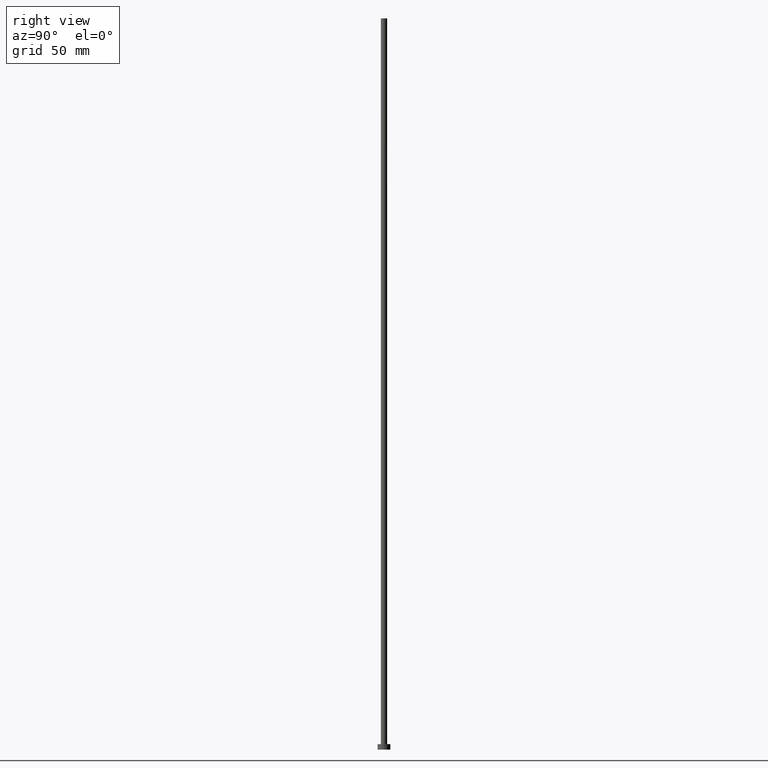
[diagram: clean part render]
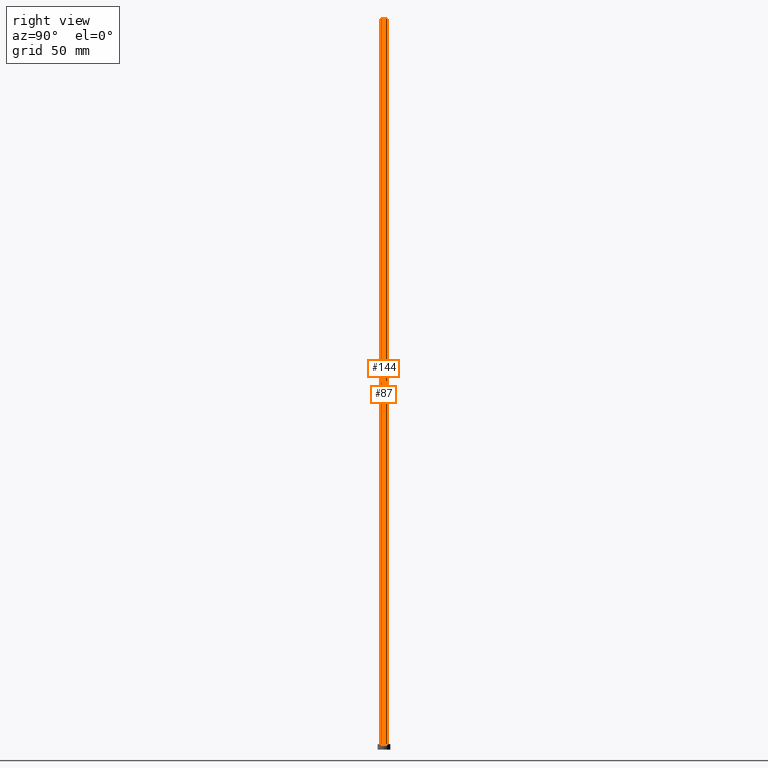
[diagram: same view with one multi-face feature highlighted, each face labeled with its STEP entity id]
A machine part, right view. The highlighted faces form ONE feature: a constant-radius fillet chain: 2 tangent blend faces with common blend radius 1.75 mm. The faces share edges in the B-rep.
Their STEP definitions:
[1] entity #144 (Cylinder):
#12 = CARTESIAN_POINT ( 'NONE',  ( 0.000000000000000000, 0.000000000000000000, 400.0000000000000000 ) ) ;
#14 = EDGE_CURVE ( 'NONE', #236, #185, #135, .T. ) ;
#16 = ORIENTED_EDGE ( 'NONE', *, *, #247, .T. ) ;
#30 = LINE ( 'NONE', #104, #254 ) ;
#32 = CYLINDRICAL_SURFACE ( 'NONE', #146, 1.750000000000000000 ) ;
#46 = CIRCLE ( 'NONE', #248, 1.750000000000000000 ) ;
#52 = ORIENTED_EDGE ( 'NONE', *, *, #180, .F. ) ;
#64 = EDGE_CURVE ( 'NONE', #226, #185, #30, .T. ) ;
#83 = DIRECTION ( 'NONE',  ( 0.000000000000000000, 0.000000000000000000, 1.000000000000000000 ) ) ;
#85 = VECTOR ( 'NONE', #228, 1000.000000000000000 ) ;
#93 = CARTESIAN_POINT ( 'NONE',  ( 1.750000000000000000, 2.143131898507868297E-16, 400.0000000000000000 ) ) ;
#95 = CARTESIAN_POINT ( 'NONE',  ( -1.750000000000000000, 0.000000000000000000, 400.0000000000000000 ) ) ;
#104 = CARTESIAN_POINT ( 'NONE',  ( 1.750000000000000000, 2.143131898507868297E-16, 400.0000000000000000 ) ) ;
#112 = VERTEX_POINT ( 'NONE', #244 ) ;
#125 = EDGE_LOOP ( 'NONE', ( #229, #52, #16, #205 ) ) ;
#126 = FACE_OUTER_BOUND ( 'NONE', #125, .T. ) ;
#135 = CIRCLE ( 'NONE', #249, 1.750000000000000000 ) ;
#137 = DIRECTION ( 'NONE',  ( -0.000000000000000000, -0.000000000000000000, -1.000000000000000000 ) ) ;
#144 = ADVANCED_FACE ( 'NONE', ( #126 ), #32, .T. ) ;
#146 = AXIS2_PLACEMENT_3D ( 'NONE', #12, #137, #217 ) ;
#149 = LINE ( 'NONE', #95, #85 ) ;
#168 = CARTESIAN_POINT ( 'NONE',  ( -1.750000000000000000, 0.000000000000000000, 3.000000000000000000 ) ) ;
#180 = EDGE_CURVE ( 'NONE', #112, #226, #46, .T. ) ;
#183 = DIRECTION ( 'NONE',  ( -0.000000000000000000, -0.000000000000000000, -1.000000000000000000 ) ) ;
#184 = CARTESIAN_POINT ( 'NONE',  ( 0.000000000000000000, 0.000000000000000000, 3.000000000000000000 ) ) ;
#185 = VERTEX_POINT ( 'NONE', #231 ) ;
#191 = CARTESIAN_POINT ( 'NONE',  ( 0.000000000000000000, 0.000000000000000000, 400.0000000000000000 ) ) ;
#205 = ORIENTED_EDGE ( 'NONE', *, *, #14, .T. ) ;
#207 = DIRECTION ( 'NONE',  ( 1.000000000000000000, 0.000000000000000000, 0.000000000000000000 ) ) ;
#217 = DIRECTION ( 'NONE',  ( -1.000000000000000000, 0.000000000000000000, 0.000000000000000000 ) ) ;
#218 = DIRECTION ( 'NONE',  ( 1.000000000000000000, 0.000000000000000000, 0.000000000000000000 ) ) ;
#222 = DIRECTION ( 'NONE',  ( 0.000000000000000000, 0.000000000000000000, 1.000000000000000000 ) ) ;
#226 = VERTEX_POINT ( 'NONE', #93 ) ;
#228 = DIRECTION ( 'NONE',  ( -0.000000000000000000, -0.000000000000000000, -1.000000000000000000 ) ) ;
#229 = ORIENTED_EDGE ( 'NONE', *, *, #64, .F. ) ;
#231 = CARTESIAN_POINT ( 'NONE',  ( 1.750000000000000000, 2.143131898507868297E-16, 3.000000000000000000 ) ) ;
#236 = VERTEX_POINT ( 'NONE', #168 ) ;
#244 = CARTESIAN_POINT ( 'NONE',  ( -1.750000000000000000, 0.000000000000000000, 400.0000000000000000 ) ) ;
#247 = EDGE_CURVE ( 'NONE', #112, #236, #149, .T. ) ;
#248 = AXIS2_PLACEMENT_3D ( 'NONE', #191, #83, #207 ) ;
#249 = AXIS2_PLACEMENT_3D ( 'NONE', #184, #222, #218 ) ;
#254 = VECTOR ( 'NONE', #183, 1000.000000000000000 ) ;
[2] entity #87 (Cylinder):
#9 = CARTESIAN_POINT ( 'NONE',  ( 0.000000000000000000, 0.000000000000000000, 400.0000000000000000 ) ) ;
#11 = DIRECTION ( 'NONE',  ( 1.000000000000000000, 0.000000000000000000, 0.000000000000000000 ) ) ;
#18 = AXIS2_PLACEMENT_3D ( 'NONE', #160, #48, #11 ) ;
#20 = DIRECTION ( 'NONE',  ( 0.000000000000000000, 0.000000000000000000, 1.000000000000000000 ) ) ;
#28 = DIRECTION ( 'NONE',  ( -0.000000000000000000, -0.000000000000000000, -1.000000000000000000 ) ) ;
#30 = LINE ( 'NONE', #104, #254 ) ;
#48 = DIRECTION ( 'NONE',  ( 0.000000000000000000, 0.000000000000000000, 1.000000000000000000 ) ) ;
#54 = ORIENTED_EDGE ( 'NONE', *, *, #109, .F. ) ;
#64 = EDGE_CURVE ( 'NONE', #226, #185, #30, .T. ) ;
#69 = AXIS2_PLACEMENT_3D ( 'NONE', #9, #28, #122 ) ;
#81 = CIRCLE ( 'NONE', #18, 1.750000000000000000 ) ;
#85 = VECTOR ( 'NONE', #228, 1000.000000000000000 ) ;
#87 = ADVANCED_FACE ( 'NONE', ( #197 ), #203, .T. ) ;
#93 = CARTESIAN_POINT ( 'NONE',  ( 1.750000000000000000, 2.143131898507868297E-16, 400.0000000000000000 ) ) ;
#95 = CARTESIAN_POINT ( 'NONE',  ( -1.750000000000000000, 0.000000000000000000, 400.0000000000000000 ) ) ;
#98 = DIRECTION ( 'NONE',  ( 1.000000000000000000, 0.000000000000000000, 0.000000000000000000 ) ) ;
#104 = CARTESIAN_POINT ( 'NONE',  ( 1.750000000000000000, 2.143131898507868297E-16, 400.0000000000000000 ) ) ;
#109 = EDGE_CURVE ( 'NONE', #226, #112, #81, .T. ) ;
#112 = VERTEX_POINT ( 'NONE', #244 ) ;
#115 = AXIS2_PLACEMENT_3D ( 'NONE', #189, #20, #98 ) ;
#122 = DIRECTION ( 'NONE',  ( -1.000000000000000000, 0.000000000000000000, 0.000000000000000000 ) ) ;
#123 = EDGE_LOOP ( 'NONE', ( #54, #208, #219, #163 ) ) ;
#149 = LINE ( 'NONE', #95, #85 ) ;
#153 = CIRCLE ( 'NONE', #115, 1.750000000000000000 ) ;
#160 = CARTESIAN_POINT ( 'NONE',  ( 0.000000000000000000, 0.000000000000000000, 400.0000000000000000 ) ) ;
#163 = ORIENTED_EDGE ( 'NONE', *, *, #247, .F. ) ;
#168 = CARTESIAN_POINT ( 'NONE',  ( -1.750000000000000000, 0.000000000000000000, 3.000000000000000000 ) ) ;
#183 = DIRECTION ( 'NONE',  ( -0.000000000000000000, -0.000000000000000000, -1.000000000000000000 ) ) ;
#185 = VERTEX_POINT ( 'NONE', #231 ) ;
#189 = CARTESIAN_POINT ( 'NONE',  ( 0.000000000000000000, 0.000000000000000000, 3.000000000000000000 ) ) ;
#197 = FACE_OUTER_BOUND ( 'NONE', #123, .T. ) ;
#198 = EDGE_CURVE ( 'NONE', #185, #236, #153, .T. ) ;
#203 = CYLINDRICAL_SURFACE ( 'NONE', #69, 1.750000000000000000 ) ;
#208 = ORIENTED_EDGE ( 'NONE', *, *, #64, .T. ) ;
#219 = ORIENTED_EDGE ( 'NONE', *, *, #198, .T. ) ;
#226 = VERTEX_POINT ( 'NONE', #93 ) ;
#228 = DIRECTION ( 'NONE',  ( -0.000000000000000000, -0.000000000000000000, -1.000000000000000000 ) ) ;
#231 = CARTESIAN_POINT ( 'NONE',  ( 1.750000000000000000, 2.143131898507868297E-16, 3.000000000000000000 ) ) ;
#236 = VERTEX_POINT ( 'NONE', #168 ) ;
#244 = CARTESIAN_POINT ( 'NONE',  ( -1.750000000000000000, 0.000000000000000000, 400.0000000000000000 ) ) ;
#247 = EDGE_CURVE ( 'NONE', #112, #236, #149, .T. ) ;
#254 = VECTOR ( 'NONE', #183, 1000.000000000000000 ) ;